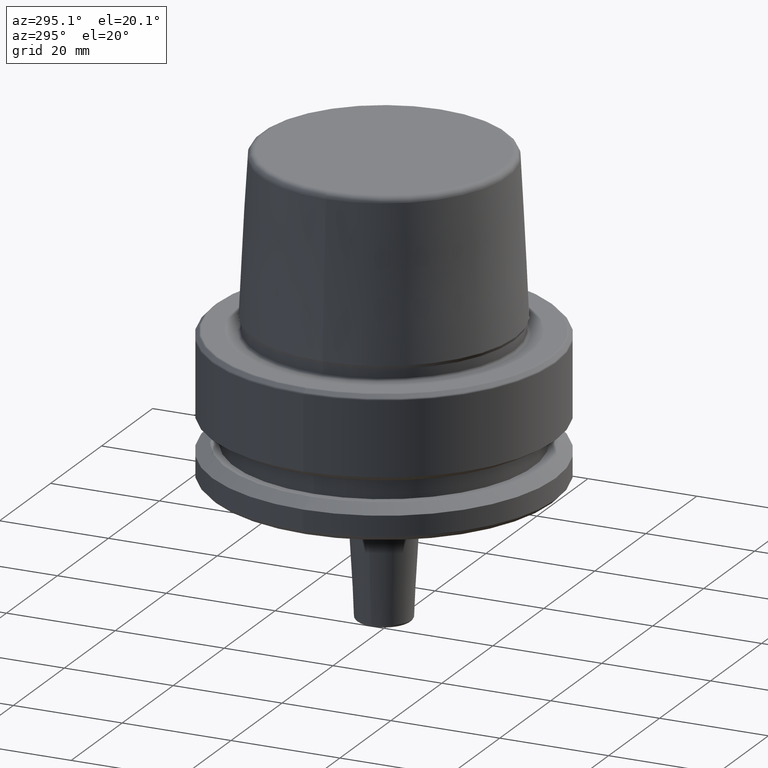
[diagram: clean part render]
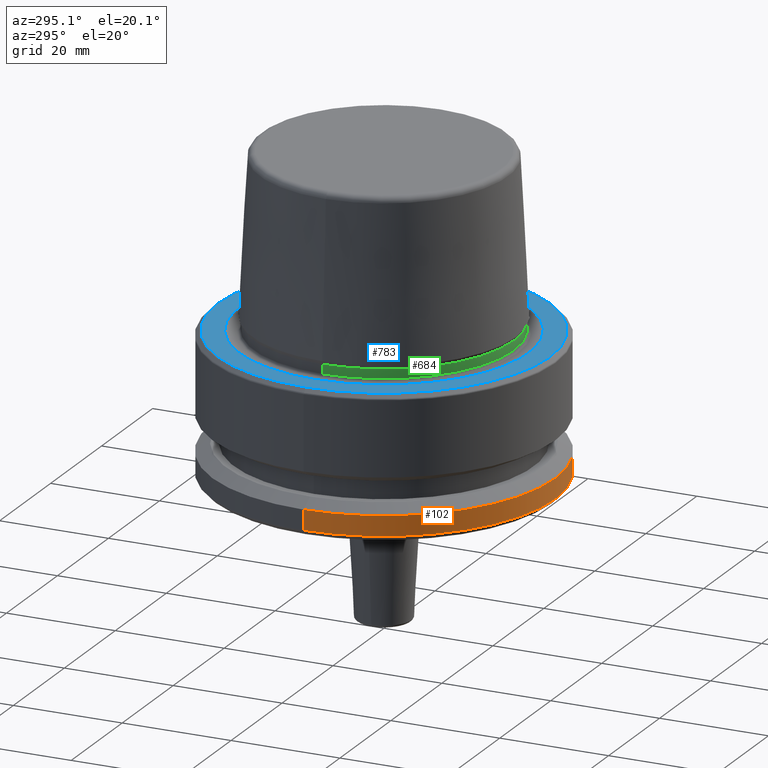
[diagram: same view with three faces highlighted in distinct colors, each labeled with its STEP entity id]
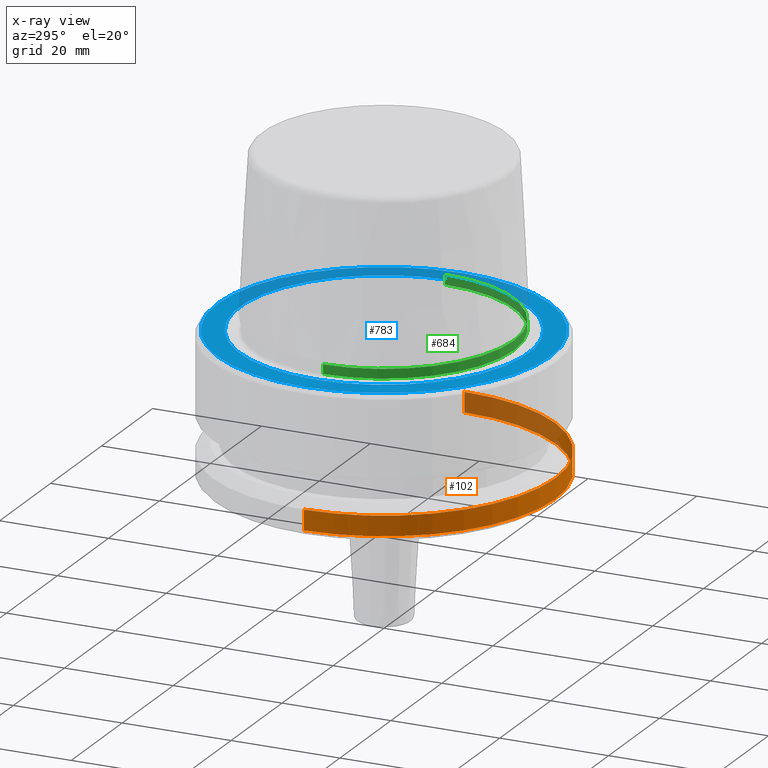
[diagram: x-ray of the same camera — body ghosted, the three highlighted faces saturated]
A machine part, auxiliary view with three faces highlighted in distinct colors.
The next image is the same camera in x-ray (body ghosted, the three faces saturated) — at least one of them is partly hidden behind the body in this view.
Their STEP definitions:

[orange] entity #102 — the highlighted cylindrical surface (partial cylindrical patch) has radius 31.5 mm, axis along (-0, -0, 1).
#25 = CARTESIAN_POINT ( 'NONE',  ( 31.50000000000000000, 0.0000000000000000000, 78.96908074195309300 ) ) ;
#28 = VECTOR ( 'NONE', #433, 1000.000000000000000 ) ;
#44 = CARTESIAN_POINT ( 'NONE',  ( 0.0000000000000000000, 0.0000000000000000000, -21.37749907475931700 ) ) ;
#49 = DIRECTION ( 'NONE',  ( 1.000000000000000000, 0.0000000000000000000, 0.0000000000000000000 ) ) ;
#74 = VERTEX_POINT ( 'NONE', #1093 ) ;
#98 = EDGE_CURVE ( 'NONE', #1184, #854, #1007, .T. ) ;
#102 = ADVANCED_FACE ( 'NONE', ( #114 ), #221, .T. ) ;
#114 = FACE_OUTER_BOUND ( 'NONE', #657, .T. ) ;
#134 = DIRECTION ( 'NONE',  ( 1.000000000000000000, 0.0000000000000000000, 0.0000000000000000000 ) ) ;
#153 = AXIS2_PLACEMENT_3D ( 'NONE', #44, #721, #134 ) ;
#184 = CIRCLE ( 'NONE', #153, 31.50000000000000000 ) ;
#219 = AXIS2_PLACEMENT_3D ( 'NONE', #961, #484, #274 ) ;
#221 = CYLINDRICAL_SURFACE ( 'NONE', #506, 31.50000000000000000 ) ;
#224 = CARTESIAN_POINT ( 'NONE',  ( 31.50000000000000000, 0.0000000000000000000, -21.37749907475931700 ) ) ;
#274 = DIRECTION ( 'NONE',  ( 1.000000000000000000, 0.0000000000000000000, 0.0000000000000000000 ) ) ;
#404 = ORIENTED_EDGE ( 'NONE', *, *, #858, .F. ) ;
#423 = CIRCLE ( 'NONE', #219, 31.50000000000000000 ) ;
#433 = DIRECTION ( 'NONE',  ( -0.0000000000000000000, -0.0000000000000000000, 1.000000000000000000 ) ) ;
#444 = CARTESIAN_POINT ( 'NONE',  ( 0.0000000000000000000, 0.0000000000000000000, 78.96908074195309300 ) ) ;
#459 = EDGE_CURVE ( 'NONE', #74, #1184, #423, .T. ) ;
#484 = DIRECTION ( 'NONE',  ( -0.0000000000000000000, -0.0000000000000000000, 1.000000000000000000 ) ) ;
#506 = AXIS2_PLACEMENT_3D ( 'NONE', #444, #624, #49 ) ;
#519 = DIRECTION ( 'NONE',  ( -0.0000000000000000000, -0.0000000000000000000, 1.000000000000000000 ) ) ;
#558 = LINE ( 'NONE', #1016, #28 ) ;
#624 = DIRECTION ( 'NONE',  ( -0.0000000000000000000, -0.0000000000000000000, 1.000000000000000000 ) ) ;
#625 = VECTOR ( 'NONE', #519, 1000.000000000000000 ) ;
#626 = VERTEX_POINT ( 'NONE', #896 ) ;
#657 = EDGE_LOOP ( 'NONE', ( #903, #705, #802, #404 ) ) ;
#705 = ORIENTED_EDGE ( 'NONE', *, *, #459, .T. ) ;
#721 = DIRECTION ( 'NONE',  ( -0.0000000000000000000, -0.0000000000000000000, 1.000000000000000000 ) ) ;
#736 = EDGE_CURVE ( 'NONE', #74, #626, #558, .T. ) ;
#802 = ORIENTED_EDGE ( 'NONE', *, *, #98, .T. ) ;
#854 = VERTEX_POINT ( 'NONE', #224 ) ;
#858 = EDGE_CURVE ( 'NONE', #626, #854, #184, .T. ) ;
#896 = CARTESIAN_POINT ( 'NONE',  ( -31.50000000000000000, 3.857637417314162700E-015, -21.37749907475931700 ) ) ;
#903 = ORIENTED_EDGE ( 'NONE', *, *, #736, .F. ) ;
#961 = CARTESIAN_POINT ( 'NONE',  ( 0.0000000000000000000, 0.0000000000000000000, -25.03431457505077200 ) ) ;
#1007 = LINE ( 'NONE', #25, #625 ) ;
#1016 = CARTESIAN_POINT ( 'NONE',  ( -31.50000000000000000, 3.857637417314162700E-015, 78.96908074195309300 ) ) ;
#1093 = CARTESIAN_POINT ( 'NONE',  ( -31.50000000000000000, 3.857637417314161900E-015, -25.03431457505077200 ) ) ;
#1132 = CARTESIAN_POINT ( 'NONE',  ( 31.50000000000000000, 0.0000000000000000000, -25.03431457505077200 ) ) ;
#1184 = VERTEX_POINT ( 'NONE', #1132 ) ;

[blue] entity #783 — the highlighted planar face has unit normal (0, 0, -1).
#6 = AXIS2_PLACEMENT_3D ( 'NONE', #926, #642, #132 ) ;
#72 = DIRECTION ( 'NONE',  ( 1.000000000000000000, 0.0000000000000000000, 0.0000000000000000000 ) ) ;
#80 = DIRECTION ( 'NONE',  ( -0.0000000000000000000, -0.0000000000000000000, 1.000000000000000000 ) ) ;
#96 = VERTEX_POINT ( 'NONE', #412 ) ;
#119 = DIRECTION ( 'NONE',  ( -0.0000000000000000000, -0.0000000000000000000, 1.000000000000000000 ) ) ;
#121 = VERTEX_POINT ( 'NONE', #213 ) ;
#132 = DIRECTION ( 'NONE',  ( 1.000000000000000000, 0.0000000000000000000, 0.0000000000000000000 ) ) ;
#155 = CARTESIAN_POINT ( 'NONE',  ( 26.52499999999999900, 0.0000000000000000000, 0.0000000000000000000 ) ) ;
#181 = ORIENTED_EDGE ( 'NONE', *, *, #577, .T. ) ;
#190 = EDGE_LOOP ( 'NONE', ( #181, #472 ) ) ;
#210 = CARTESIAN_POINT ( 'NONE',  ( 0.0000000000000000000, 0.0000000000000000000, 0.0000000000000000000 ) ) ;
#213 = CARTESIAN_POINT ( 'NONE',  ( 30.53431457505076100, 0.0000000000000000000, 0.0000000000000000000 ) ) ;
#232 = EDGE_CURVE ( 'NONE', #1194, #96, #1177, .T. ) ;
#362 = CARTESIAN_POINT ( 'NONE',  ( 0.0000000000000000000, 0.0000000000000000000, 0.0000000000000000000 ) ) ;
#380 = EDGE_CURVE ( 'NONE', #1136, #121, #947, .T. ) ;
#412 = CARTESIAN_POINT ( 'NONE',  ( -26.52499999999999900, 3.248375634738354300E-015, 0.0000000000000000000 ) ) ;
#472 = ORIENTED_EDGE ( 'NONE', *, *, #380, .T. ) ;
#521 = FACE_BOUND ( 'NONE', #949, .T. ) ;
#543 = PLANE ( 'NONE',  #944 ) ;
#577 = EDGE_CURVE ( 'NONE', #121, #1136, #700, .T. ) ;
#610 = AXIS2_PLACEMENT_3D ( 'NONE', #362, #1046, #72 ) ;
#642 = DIRECTION ( 'NONE',  ( -0.0000000000000000000, -0.0000000000000000000, 1.000000000000000000 ) ) ;
#669 = CARTESIAN_POINT ( 'NONE',  ( 0.0000000000000000000, 0.0000000000000000000, 0.0000000000000000000 ) ) ;
#700 = CIRCLE ( 'NONE', #832, 30.53431457505076100 ) ;
#769 = DIRECTION ( 'NONE',  ( 1.000000000000000000, 0.0000000000000000000, 0.0000000000000000000 ) ) ;
#779 = FACE_OUTER_BOUND ( 'NONE', #190, .T. ) ;
#783 = ADVANCED_FACE ( 'NONE', ( #521, #779 ), #543, .F. ) ;
#808 = CIRCLE ( 'NONE', #1062, 26.52499999999999900 ) ;
#827 = CARTESIAN_POINT ( 'NONE',  ( 0.0000000000000000000, 26.52499999999999900, -1.111307226797642000E-015 ) ) ;
#832 = AXIS2_PLACEMENT_3D ( 'NONE', #210, #119, #1202 ) ;
#926 = CARTESIAN_POINT ( 'NONE',  ( 0.0000000000000000000, 0.0000000000000000000, 0.0000000000000000000 ) ) ;
#944 = AXIS2_PLACEMENT_3D ( 'NONE', #827, #1066, #1172 ) ;
#947 = CIRCLE ( 'NONE', #610, 30.53431457505076100 ) ;
#949 = EDGE_LOOP ( 'NONE', ( #1241, #1091 ) ) ;
#1046 = DIRECTION ( 'NONE',  ( -0.0000000000000000000, -0.0000000000000000000, 1.000000000000000000 ) ) ;
#1062 = AXIS2_PLACEMENT_3D ( 'NONE', #669, #80, #769 ) ;
#1066 = DIRECTION ( 'NONE',  ( 0.0000000000000000000, 0.0000000000000000000, -1.000000000000000000 ) ) ;
#1091 = ORIENTED_EDGE ( 'NONE', *, *, #1108, .F. ) ;
#1108 = EDGE_CURVE ( 'NONE', #96, #1194, #808, .T. ) ;
#1136 = VERTEX_POINT ( 'NONE', #1146 ) ;
#1146 = CARTESIAN_POINT ( 'NONE',  ( -30.53431457505076100, 3.756694181974138600E-015, 0.0000000000000000000 ) ) ;
#1172 = DIRECTION ( 'NONE',  ( -1.000000000000000000, 0.0000000000000000000, -0.0000000000000000000 ) ) ;
#1177 = CIRCLE ( 'NONE', #6, 26.52499999999999900 ) ;
#1194 = VERTEX_POINT ( 'NONE', #155 ) ;
#1202 = DIRECTION ( 'NONE',  ( 1.000000000000000000, 0.0000000000000000000, 0.0000000000000000000 ) ) ;
#1241 = ORIENTED_EDGE ( 'NONE', *, *, #232, .F. ) ;

[green] entity #684 — the highlighted cylindrical surface (partial cylindrical patch) has radius 23.89 mm, axis along (-0, -0, 1).
#15 = CARTESIAN_POINT ( 'NONE',  ( -23.89000000000000400, 2.961613815265650600E-015, 0.1312552021302954000 ) ) ;
#23 = DIRECTION ( 'NONE',  ( -0.0000000000000000000, -0.0000000000000000000, 1.000000000000000000 ) ) ;
#51 = CARTESIAN_POINT ( 'NONE',  ( 23.89000000000000100, 0.0000000000000000000, 1.845119734979375100 ) ) ;
#65 = LINE ( 'NONE', #271, #781 ) ;
#107 = CARTESIAN_POINT ( 'NONE',  ( 0.0000000000000000000, 0.0000000000000000000, 0.1312552021302954000 ) ) ;
#109 = DIRECTION ( 'NONE',  ( -0.0000000000000000000, -0.0000000000000000000, 1.000000000000000000 ) ) ;
#138 = VERTEX_POINT ( 'NONE', #1210 ) ;
#177 = EDGE_LOOP ( 'NONE', ( #801, #522, #639, #1134 ) ) ;
#254 = DIRECTION ( 'NONE',  ( -0.0000000000000000000, -0.0000000000000000000, 1.000000000000000000 ) ) ;
#256 = EDGE_CURVE ( 'NONE', #298, #915, #1220, .T. ) ;
#271 = CARTESIAN_POINT ( 'NONE',  ( 23.89000000000000100, 0.0000000000000000000, 78.96908074195309300 ) ) ;
#291 = DIRECTION ( 'NONE',  ( 1.000000000000000000, 0.0000000000000000000, 0.0000000000000000000 ) ) ;
#298 = VERTEX_POINT ( 'NONE', #15 ) ;
#509 = CIRCLE ( 'NONE', #671, 23.89000000000000100 ) ;
#522 = ORIENTED_EDGE ( 'NONE', *, *, #256, .T. ) ;
#528 = DIRECTION ( 'NONE',  ( 1.000000000000000000, 0.0000000000000000000, 0.0000000000000000000 ) ) ;
#549 = EDGE_CURVE ( 'NONE', #138, #883, #509, .T. ) ;
#607 = LINE ( 'NONE', #737, #1107 ) ;
#639 = ORIENTED_EDGE ( 'NONE', *, *, #1154, .T. ) ;
#671 = AXIS2_PLACEMENT_3D ( 'NONE', #762, #254, #1145 ) ;
#674 = FACE_OUTER_BOUND ( 'NONE', #177, .T. ) ;
#684 = ADVANCED_FACE ( 'NONE', ( #674 ), #1094, .T. ) ;
#697 = AXIS2_PLACEMENT_3D ( 'NONE', #107, #23, #528 ) ;
#737 = CARTESIAN_POINT ( 'NONE',  ( -23.89000000000000100, 2.925681203163027000E-015, 78.96908074195309300 ) ) ;
#746 = AXIS2_PLACEMENT_3D ( 'NONE', #1092, #109, #291 ) ;
#762 = CARTESIAN_POINT ( 'NONE',  ( 0.0000000000000000000, 0.0000000000000000000, 1.845119734979375100 ) ) ;
#781 = VECTOR ( 'NONE', #950, 1000.000000000000000 ) ;
#801 = ORIENTED_EDGE ( 'NONE', *, *, #925, .F. ) ;
#841 = DIRECTION ( 'NONE',  ( -0.0000000000000000000, -0.0000000000000000000, 1.000000000000000000 ) ) ;
#883 = VERTEX_POINT ( 'NONE', #51 ) ;
#915 = VERTEX_POINT ( 'NONE', #1119 ) ;
#925 = EDGE_CURVE ( 'NONE', #298, #138, #607, .T. ) ;
#950 = DIRECTION ( 'NONE',  ( -0.0000000000000000000, -0.0000000000000000000, 1.000000000000000000 ) ) ;
#1092 = CARTESIAN_POINT ( 'NONE',  ( 0.0000000000000000000, 0.0000000000000000000, 78.96908074195309300 ) ) ;
#1094 = CYLINDRICAL_SURFACE ( 'NONE', #746, 23.89000000000000100 ) ;
#1107 = VECTOR ( 'NONE', #841, 1000.000000000000000 ) ;
#1119 = CARTESIAN_POINT ( 'NONE',  ( 23.89000000000000400, 0.0000000000000000000, 0.1312552021302954000 ) ) ;
#1134 = ORIENTED_EDGE ( 'NONE', *, *, #549, .F. ) ;
#1145 = DIRECTION ( 'NONE',  ( 1.000000000000000000, 0.0000000000000000000, 0.0000000000000000000 ) ) ;
#1154 = EDGE_CURVE ( 'NONE', #915, #883, #65, .T. ) ;
#1210 = CARTESIAN_POINT ( 'NONE',  ( -23.89000000000000100, 2.944380070784114200E-015, 1.845119734979375100 ) ) ;
#1220 = CIRCLE ( 'NONE', #697, 23.89000000000000400 ) ;